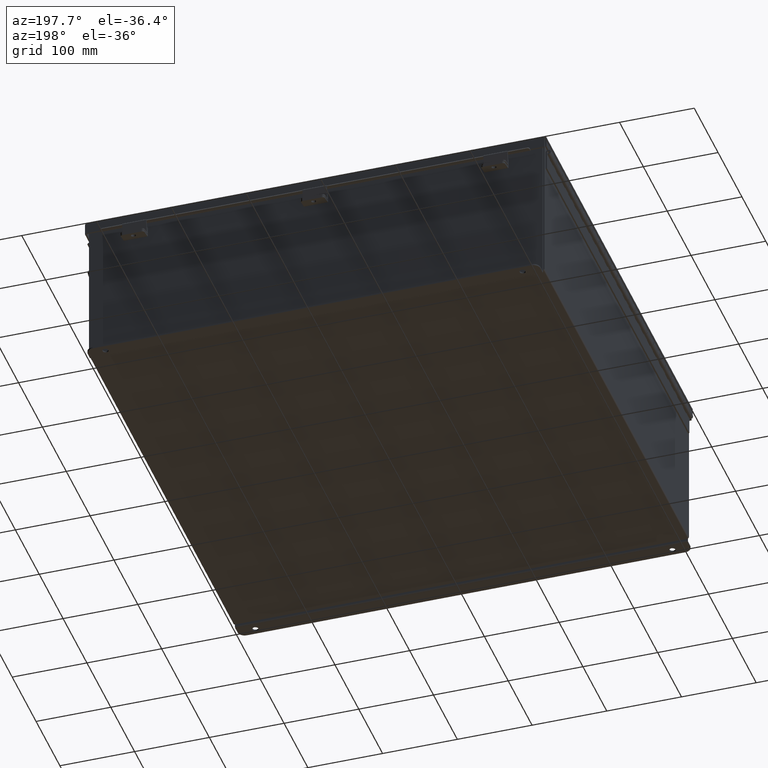
[diagram: clean part render]
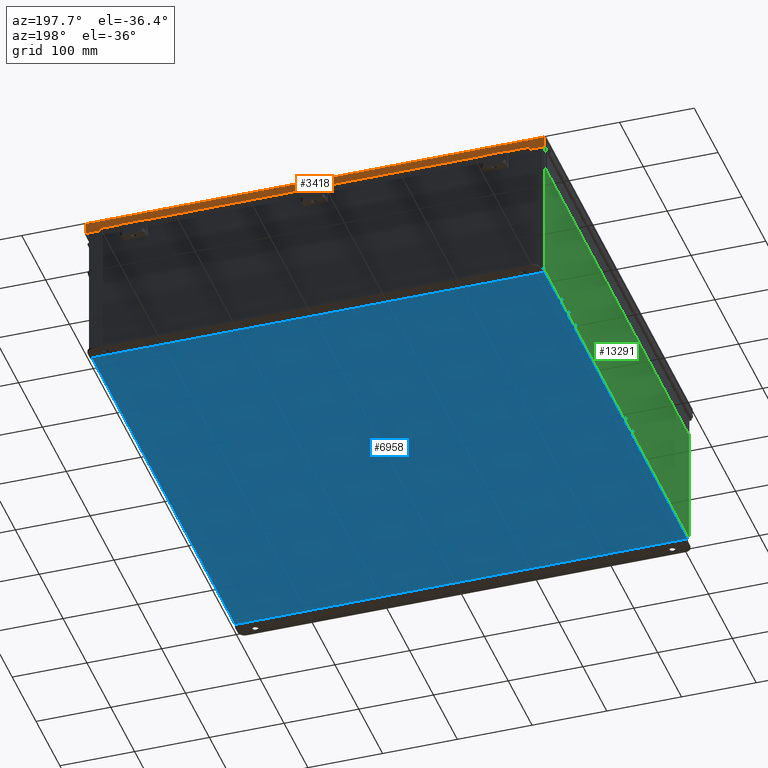
[diagram: same view with three faces highlighted in distinct colors, each labeled with its STEP entity id]
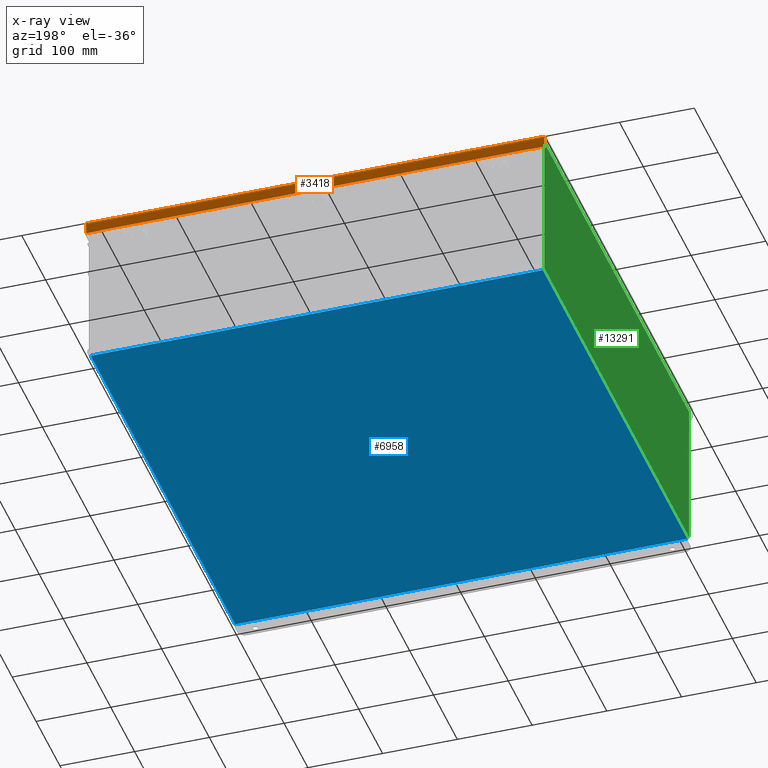
[diagram: x-ray of the same camera — body ghosted, the three highlighted faces saturated]
A machine part, auxiliary view with three faces highlighted in distinct colors.
The next image is the same camera in x-ray (body ghosted, the three faces saturated) — at least one of them is partly hidden behind the body in this view.
Their STEP definitions:

[orange] entity #3418 — the highlighted planar face has unit normal (-0, -1, -0).
#298 = EDGE_CURVE ( 'NONE', #23885, #22784, #4311, .T. ) ;
#737 = ORIENTED_EDGE ( 'NONE', *, *, #23286, .F. ) ;
#779 = CARTESIAN_POINT ( 'NONE',  ( 11.32447893218816900, 12.15624999999999500, 0.5967115427318782100 ) ) ;
#1577 = DIRECTION ( 'NONE',  ( 1.000000000000000000, 3.215610014906585900E-030, 2.809098193999883300E-018 ) ) ;
#2593 = FACE_OUTER_BOUND ( 'NONE', #24127, .T. ) ;
#2696 = EDGE_CURVE ( 'NONE', #18797, #10053, #4152, .T. ) ;
#2975 = CARTESIAN_POINT ( 'NONE',  ( 11.32447893218817300, 12.15625000000000200, 0.6123000000000005100 ) ) ;
#3162 = PLANE ( 'NONE',  #23605 ) ;
#3341 = ORIENTED_EDGE ( 'NONE', *, *, #24730, .F. ) ;
#3418 = ADVANCED_FACE ( 'NONE', ( #2593 ), #3162, .F. ) ;
#3600 = CARTESIAN_POINT ( 'NONE',  ( 12.15625000000003900, 12.15624999999999800, 0.01300000000000010700 ) ) ;
#4056 = ORIENTED_EDGE ( 'NONE', *, *, #298, .F. ) ;
#4152 = LINE ( 'NONE', #20768, #17088 ) ;
#4180 = EDGE_CURVE ( 'NONE', #10903, #10053, #7412, .T. ) ;
#4311 = LINE ( 'NONE', #2975, #13946 ) ;
#4414 = CARTESIAN_POINT ( 'NONE',  ( -11.32447893218815200, 12.15625000000000000, 0.5967115427318782100 ) ) ;
#5032 = CARTESIAN_POINT ( 'NONE',  ( 11.32447893218817300, 12.15625000000000000, 0.6123000000000005100 ) ) ;
#5095 = DIRECTION ( 'NONE',  ( 0.0000000000000000000, -3.569293475308532400E-015, -1.000000000000000000 ) ) ;
#5224 = CARTESIAN_POINT ( 'NONE',  ( 12.07447893218817300, 12.15624999999999800, 0.0000000000000000000 ) ) ;
#6572 = ORIENTED_EDGE ( 'NONE', *, *, #24923, .T. ) ;
#6603 = CARTESIAN_POINT ( 'NONE',  ( -11.32447893218815200, 12.15624999999999500, 0.5967115427318782100 ) ) ;
#6959 = CARTESIAN_POINT ( 'NONE',  ( 0.0000000000000000000, 12.15624999999999800, -4.370956789862821100E-014 ) ) ;
#7412 = LINE ( 'NONE', #6603, #22151 ) ;
#7683 = VECTOR ( 'NONE', #22578, 39.37007874015748100 ) ;
#7924 = VERTEX_POINT ( 'NONE', #11722 ) ;
#9698 = LINE ( 'NONE', #13712, #14193 ) ;
#10053 = VERTEX_POINT ( 'NONE', #13287 ) ;
#10676 = ORIENTED_EDGE ( 'NONE', *, *, #4180, .F. ) ;
#10903 = VERTEX_POINT ( 'NONE', #4414 ) ;
#11722 = CARTESIAN_POINT ( 'NONE',  ( 12.07447893218817300, 12.15625000000000000, 0.6123000000000005100 ) ) ;
#12182 = EDGE_CURVE ( 'NONE', #22784, #10903, #14913, .T. ) ;
#12222 = VECTOR ( 'NONE', #14243, 39.37007874015748100 ) ;
#12780 = LINE ( 'NONE', #5224, #7683 ) ;
#13059 = CARTESIAN_POINT ( 'NONE',  ( -12.07447893218816400, 12.15625000000000000, 0.6122999999999994000 ) ) ;
#13287 = CARTESIAN_POINT ( 'NONE',  ( -11.32447893218816400, 12.15625000000000000, 0.6122999999999994000 ) ) ;
#13529 = ORIENTED_EDGE ( 'NONE', *, *, #2696, .T. ) ;
#13712 = CARTESIAN_POINT ( 'NONE',  ( -12.07447893218816400, 12.15624999999999800, -4.370956789862821100E-014 ) ) ;
#13946 = VECTOR ( 'NONE', #20315, 39.37007874015748100 ) ;
#14193 = VECTOR ( 'NONE', #21447, 39.37007874015748100 ) ;
#14243 = DIRECTION ( 'NONE',  ( -1.000000000000000000, -3.191323508412551400E-030, -0.0000000000000000000 ) ) ;
#14913 = LINE ( 'NONE', #779, #12222 ) ;
#15341 = CARTESIAN_POINT ( 'NONE',  ( 11.32447893218817300, 12.15625000000000000, 0.5967115427318782100 ) ) ;
#15914 = CARTESIAN_POINT ( 'NONE',  ( 12.07447893218817300, 12.15624999999999800, 0.01300000000000010700 ) ) ;
#16608 = DIRECTION ( 'NONE',  ( -3.347543324056399800E-030, -1.000000000000000000, 3.569293475308532400E-015 ) ) ;
#17088 = VECTOR ( 'NONE', #1577, 39.37007874015748100 ) ;
#17159 = VERTEX_POINT ( 'NONE', #18750 ) ;
#17802 = VECTOR ( 'NONE', #20959, 39.37007874015748100 ) ;
#18458 = VERTEX_POINT ( 'NONE', #15914 ) ;
#18750 = CARTESIAN_POINT ( 'NONE',  ( -12.07447893218816400, 12.15624999999999800, 0.01300000000000229300 ) ) ;
#18793 = ORIENTED_EDGE ( 'NONE', *, *, #21815, .T. ) ;
#18797 = VERTEX_POINT ( 'NONE', #13059 ) ;
#19171 = VECTOR ( 'NONE', #23550, 39.37007874015748100 ) ;
#19680 = CARTESIAN_POINT ( 'NONE',  ( -2.134256245050205600E-018, 12.15625000000000000, 0.6122999999999994000 ) ) ;
#20315 = DIRECTION ( 'NONE',  ( 1.401985044024013700E-013, -4.205955132072028500E-013, -1.000000000000000000 ) ) ;
#20768 = CARTESIAN_POINT ( 'NONE',  ( -2.134256245050205600E-018, 12.15625000000000000, 0.6122999999999994000 ) ) ;
#20959 = DIRECTION ( 'NONE',  ( 1.000000000000000000, 3.079756689383634900E-030, -8.989114220797575600E-017 ) ) ;
#21447 = DIRECTION ( 'NONE',  ( 0.0000000000000000000, 3.569293475308532400E-015, 1.000000000000000000 ) ) ;
#21815 = EDGE_CURVE ( 'NONE', #23885, #7924, #24289, .T. ) ;
#22151 = VECTOR ( 'NONE', #23936, 39.37007874015748100 ) ;
#22578 = DIRECTION ( 'NONE',  ( -0.0000000000000000000, 3.569293475308532400E-015, 1.000000000000000000 ) ) ;
#22784 = VERTEX_POINT ( 'NONE', #15341 ) ;
#22952 = LINE ( 'NONE', #3600, #17802 ) ;
#23286 = EDGE_CURVE ( 'NONE', #18458, #7924, #12780, .T. ) ;
#23550 = DIRECTION ( 'NONE',  ( 1.000000000000000000, 3.215610014906585900E-030, 2.809098193999883300E-018 ) ) ;
#23605 = AXIS2_PLACEMENT_3D ( 'NONE', #6959, #16608, #5095 ) ;
#23885 = VERTEX_POINT ( 'NONE', #5032 ) ;
#23936 = DIRECTION ( 'NONE',  ( -9.813895308167668300E-013, 2.803970088047895600E-013, 1.000000000000000000 ) ) ;
#24127 = EDGE_LOOP ( 'NONE', ( #4056, #18793, #737, #3341, #6572, #13529, #10676, #24710 ) ) ;
#24289 = LINE ( 'NONE', #19680, #19171 ) ;
#24710 = ORIENTED_EDGE ( 'NONE', *, *, #12182, .F. ) ;
#24730 = EDGE_CURVE ( 'NONE', #17159, #18458, #22952, .T. ) ;
#24923 = EDGE_CURVE ( 'NONE', #17159, #18797, #9698, .T. ) ;

[blue] entity #6958 — the highlighted planar face has unit normal (0, 0, -1).
#14 = ORIENTED_EDGE ( 'NONE', *, *, #22845, .F. ) ;
#201 = LINE ( 'NONE', #1417, #14352 ) ;
#725 = VECTOR ( 'NONE', #18076, 39.37007874015748100 ) ;
#1417 = CARTESIAN_POINT ( 'NONE',  ( -11.91230000000000000, -11.92530000000000000, -0.07469999999999994700 ) ) ;
#2239 = VERTEX_POINT ( 'NONE', #21041 ) ;
#2909 = CARTESIAN_POINT ( 'NONE',  ( 11.91230000000000000, 11.92529999999999800, -0.07469999999999994700 ) ) ;
#2908 = DIRECTION ( 'NONE',  ( 0.0000000000000000000, 0.0000000000000000000, -1.000000000000000000 ) ) ;
#5196 = DIRECTION ( 'NONE',  ( 1.000000000000000000, 0.0000000000000000000, 0.0000000000000000000 ) ) ;
#5738 = EDGE_CURVE ( 'NONE', #6503, #18287, #10999, .T. ) ;
#5933 = EDGE_CURVE ( 'NONE', #8427, #18287, #11874, .T. ) ;
#6503 = VERTEX_POINT ( 'NONE', #2909 ) ;
#6958 = ADVANCED_FACE ( 'NONE', ( #16921 ), #8661, .T. ) ;
#7882 = DIRECTION ( 'NONE',  ( -1.000000000000000000, -0.0000000000000000000, -0.0000000000000000000 ) ) ;
#8300 = LINE ( 'NONE', #19390, #19126 ) ;
#8424 = CARTESIAN_POINT ( 'NONE',  ( 11.91230000000000000, 11.92530000000000000, -0.07469999999999994700 ) ) ;
#8427 = VERTEX_POINT ( 'NONE', #13986 ) ;
#8661 = PLANE ( 'NONE',  #21725 ) ;
#10999 = LINE ( 'NONE', #8424, #725 ) ;
#11175 = EDGE_CURVE ( 'NONE', #8427, #2239, #201, .T. ) ;
#11874 = LINE ( 'NONE', #18661, #12474 ) ;
#12342 = EDGE_LOOP ( 'NONE', ( #14, #22943, #12859, #22910 ) ) ;
#12474 = VECTOR ( 'NONE', #5196, 39.37007874015748100 ) ;
#12859 = ORIENTED_EDGE ( 'NONE', *, *, #5933, .F. ) ;
#13986 = CARTESIAN_POINT ( 'NONE',  ( -11.91230000000000000, -11.92529999999999800, -0.07469999999999994700 ) ) ;
#14352 = VECTOR ( 'NONE', #14879, 39.37007874015748100 ) ;
#14879 = DIRECTION ( 'NONE',  ( -0.0000000000000000000, 1.000000000000000000, -0.0000000000000000000 ) ) ;
#16360 = DIRECTION ( 'NONE',  ( -1.000000000000000000, 0.0000000000000000000, -0.0000000000000000000 ) ) ;
#16921 = FACE_OUTER_BOUND ( 'NONE', #12342, .T. ) ;
#18076 = DIRECTION ( 'NONE',  ( -0.0000000000000000000, -1.000000000000000000, -0.0000000000000000000 ) ) ;
#18287 = VERTEX_POINT ( 'NONE', #23101 ) ;
#18661 = CARTESIAN_POINT ( 'NONE',  ( -12.00000000000000200, -11.92530000000000000, -0.07470000000000000300 ) ) ;
#19126 = VECTOR ( 'NONE', #7882, 39.37007874015748100 ) ;
#19390 = CARTESIAN_POINT ( 'NONE',  ( -12.00000000000000200, 11.92530000000000000, -0.07470000000000000300 ) ) ;
#20154 = CARTESIAN_POINT ( 'NONE',  ( 0.0000000000000000000, 0.0000000000000000000, -0.07470000000000000300 ) ) ;
#21041 = CARTESIAN_POINT ( 'NONE',  ( -11.91230000000000000, 11.92530000000000000, -0.07470000000000000300 ) ) ;
#21725 = AXIS2_PLACEMENT_3D ( 'NONE', #20154, #2908, #16360 ) ;
#22845 = EDGE_CURVE ( 'NONE', #6503, #2239, #8300, .T. ) ;
#22910 = ORIENTED_EDGE ( 'NONE', *, *, #11175, .T. ) ;
#22943 = ORIENTED_EDGE ( 'NONE', *, *, #5738, .T. ) ;
#23101 = CARTESIAN_POINT ( 'NONE',  ( 11.91230000000000000, -11.92530000000000000, -0.07470000000000000300 ) ) ;

[green] entity #13291 — the highlighted planar face has unit normal (1, 0, 0).
#295 = EDGE_LOOP ( 'NONE', ( #3589, #23588, #17975, #10669 ) ) ;
#2861 = VECTOR ( 'NONE', #10650, 39.37007874015748100 ) ;
#3147 = CARTESIAN_POINT ( 'NONE',  ( -12.00000000000000200, 11.92530000000000000, 0.01299999999999984300 ) ) ;
#3589 = ORIENTED_EDGE ( 'NONE', *, *, #13003, .T. ) ;
#3729 = DIRECTION ( 'NONE',  ( 0.0000000000000000000, 1.000000000000000000, 0.0000000000000000000 ) ) ;
#3903 = DIRECTION ( 'NONE',  ( 3.618986973493534200E-015, 0.0000000000000000000, -1.000000000000000000 ) ) ;
#4922 = FACE_OUTER_BOUND ( 'NONE', #295, .T. ) ;
#5589 = LINE ( 'NONE', #23107, #24850 ) ;
#5728 = VERTEX_POINT ( 'NONE', #8348 ) ;
#6077 = CARTESIAN_POINT ( 'NONE',  ( -12.00000000000000200, 11.92530000000000000, 0.01299999999999982600 ) ) ;
#6160 = DIRECTION ( 'NONE',  ( -0.0000000000000000000, 1.000000000000000000, -0.0000000000000000000 ) ) ;
#6731 = VECTOR ( 'NONE', #6160, 39.37007874015748100 ) ;
#7170 = AXIS2_PLACEMENT_3D ( 'NONE', #8446, #21907, #10381 ) ;
#8348 = CARTESIAN_POINT ( 'NONE',  ( -12.00000000000000200, -11.92529999999999800, 0.01299999999999982600 ) ) ;
#8446 = CARTESIAN_POINT ( 'NONE',  ( -12.00000000000000200, 0.0000000000000000000, -4.369249384866780800E-014 ) ) ;
#8962 = CARTESIAN_POINT ( 'NONE',  ( -12.00000000000003000, 11.92530000000000000, 7.837600000000000100 ) ) ;
#10381 = DIRECTION ( 'NONE',  ( 3.618986973493534200E-015, 0.0000000000000000000, -1.000000000000000000 ) ) ;
#10650 = DIRECTION ( 'NONE',  ( -3.618986973493534200E-015, 2.783836133456565100E-016, 1.000000000000000000 ) ) ;
#10669 = ORIENTED_EDGE ( 'NONE', *, *, #12260, .T. ) ;
#10988 = VECTOR ( 'NONE', #3729, 39.37007874015748100 ) ;
#11897 = EDGE_CURVE ( 'NONE', #20559, #22688, #5589, .T. ) ;
#12260 = EDGE_CURVE ( 'NONE', #5728, #24646, #17601, .T. ) ;
#13003 = EDGE_CURVE ( 'NONE', #24646, #20559, #16063, .T. ) ;
#13187 = EDGE_CURVE ( 'NONE', #5728, #22688, #17555, .T. ) ;
#13291 = ADVANCED_FACE ( 'NONE', ( #4922 ), #17927, .F. ) ;
#14635 = CARTESIAN_POINT ( 'NONE',  ( -12.00000000000002700, -11.92529999999999800, 7.837600000000000100 ) ) ;
#16063 = LINE ( 'NONE', #19047, #10988 ) ;
#17555 = LINE ( 'NONE', #6077, #6731 ) ;
#17601 = LINE ( 'NONE', #20217, #2861 ) ;
#17927 = PLANE ( 'NONE',  #7170 ) ;
#17975 = ORIENTED_EDGE ( 'NONE', *, *, #13187, .F. ) ;
#19047 = CARTESIAN_POINT ( 'NONE',  ( -12.00000000000002700, -11.92530000000000000, 7.837600000000000100 ) ) ;
#20217 = CARTESIAN_POINT ( 'NONE',  ( -12.00000000000000200, -11.92530000000000000, -4.037159113136968800E-014 ) ) ;
#20559 = VERTEX_POINT ( 'NONE', #8962 ) ;
#21907 = DIRECTION ( 'NONE',  ( 1.000000000000000000, 0.0000000000000000000, 3.618986973493534200E-015 ) ) ;
#22688 = VERTEX_POINT ( 'NONE', #3147 ) ;
#23107 = CARTESIAN_POINT ( 'NONE',  ( -12.00000000000000200, 11.92530000000000000, -4.369249384866780800E-014 ) ) ;
#23588 = ORIENTED_EDGE ( 'NONE', *, *, #11897, .T. ) ;
#24646 = VERTEX_POINT ( 'NONE', #14635 ) ;
#24850 = VECTOR ( 'NONE', #3903, 39.37007874015748100 ) ;